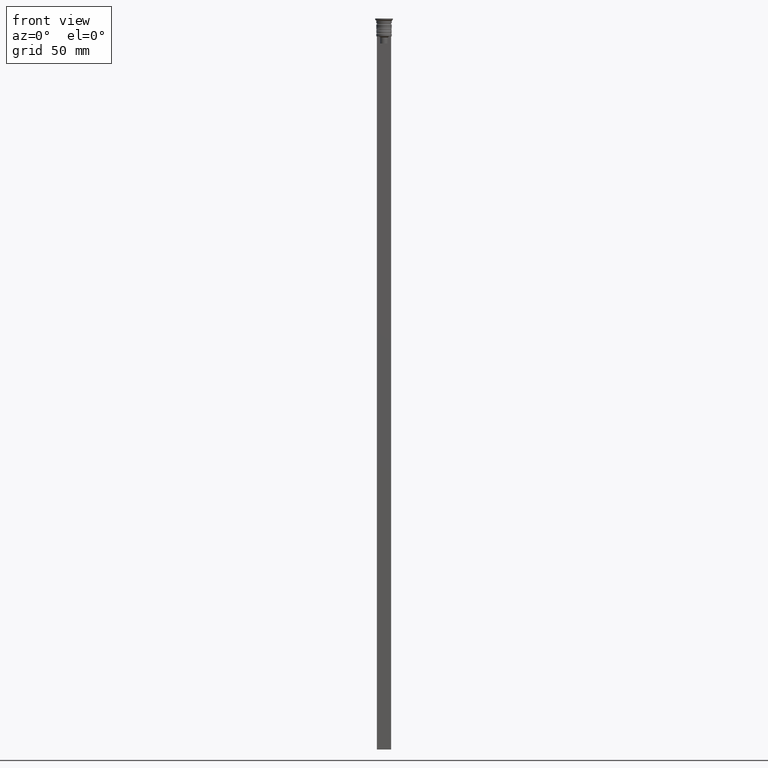
[diagram: clean part render]
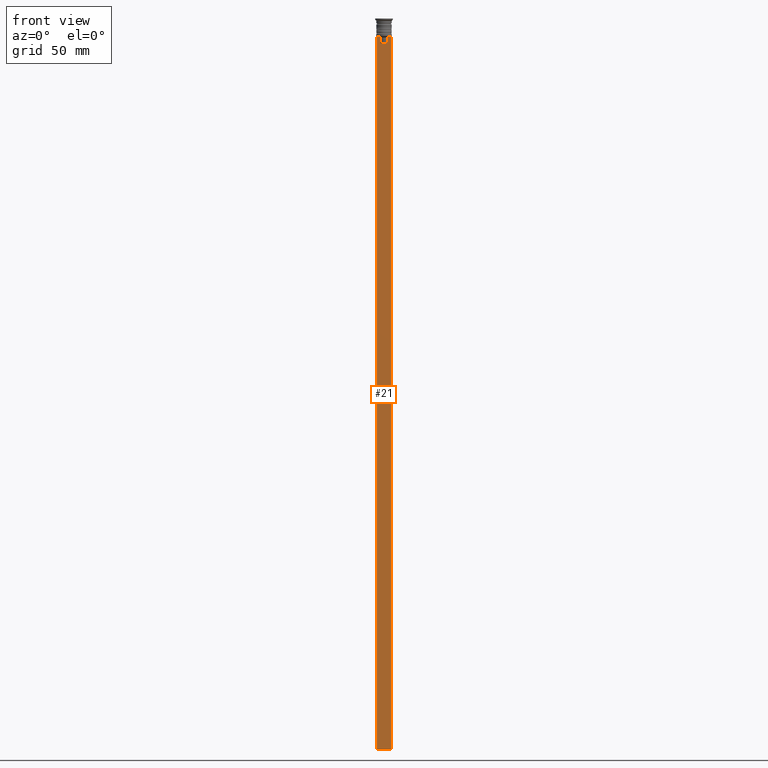
[diagram: same view with one face highlighted and labeled with its STEP entity id]
A machine part, front view. The second image highlights one B-rep face of the part: STEP entity #21.
In plain terms, the highlighted planar face has unit normal (0, -1, -0).
Its self-contained STEP definition (entity closure, byte-faithful):
#21 = ADVANCED_FACE ( 'NONE', ( #679 ), #1364, .T. ) ;
#41 = CARTESIAN_POINT ( 'NONE',  ( -1.612451549659713601, -0.3500000000000000333, 0.000000000000000000 ) ) ;
#66 = EDGE_CURVE ( 'NONE', #1867, #494, #701, .T. ) ;
#198 = CARTESIAN_POINT ( 'NONE',  ( -1.612451549659713601, -0.3500000000000000333, -10.49999999999999822 ) ) ;
#213 = VECTOR ( 'NONE', #1169, 1000.000000000000000 ) ;
#217 = VECTOR ( 'NONE', #1205, 1000.000000000000000 ) ;
#261 = LINE ( 'NONE', #952, #2148 ) ;
#296 = DIRECTION ( 'NONE',  ( 0.000000000000000000, 0.000000000000000000, -1.000000000000000000 ) ) ;
#332 = LINE ( 'NONE', #2027, #217 ) ;
#341 = CARTESIAN_POINT ( 'NONE',  ( 1.612451549659713601, -0.3500000000000000333, -8.000000000000000000 ) ) ;
#354 = ORIENTED_EDGE ( 'NONE', *, *, #577, .F. ) ;
#394 = ORIENTED_EDGE ( 'NONE', *, *, #2176, .F. ) ;
#406 = ORIENTED_EDGE ( 'NONE', *, *, #1679, .F. ) ;
#422 = CARTESIAN_POINT ( 'NONE',  ( 2.999999999999995559, -0.3500000000000000333, -307.5000000000000000 ) ) ;
#426 = LINE ( 'NONE', #1790, #1447 ) ;
#490 = EDGE_CURVE ( 'NONE', #1835, #1867, #1848, .T. ) ;
#494 = VERTEX_POINT ( 'NONE', #198 ) ;
#543 = DIRECTION ( 'NONE',  ( 0.000000000000000000, 0.000000000000000000, -1.000000000000000000 ) ) ;
#577 = EDGE_CURVE ( 'NONE', #1435, #1715, #426, .T. ) ;
#591 = DIRECTION ( 'NONE',  ( -1.000000000000000000, 0.000000000000000000, 0.000000000000000000 ) ) ;
#679 = FACE_OUTER_BOUND ( 'NONE', #922, .T. ) ;
#701 = LINE ( 'NONE', #41, #1299 ) ;
#708 = VECTOR ( 'NONE', #2181, 1000.000000000000000 ) ;
#756 = EDGE_CURVE ( 'NONE', #1914, #794, #848, .T. ) ;
#794 = VERTEX_POINT ( 'NONE', #1697 ) ;
#797 = LINE ( 'NONE', #1500, #213 ) ;
#837 = B_SPLINE_CURVE_WITH_KNOTS ( 'NONE', 3,
 ( #341, #1055, #1677, #1386 ),
 .UNSPECIFIED., .F., .F.,
 ( 4, 4 ),
 ( 0.008600796474521228696, 0.009317962624906526645 ),
 .UNSPECIFIED. ) ;
#848 = LINE ( 'NONE', #1180, #1896 ) ;
#880 = CARTESIAN_POINT ( 'NONE',  ( -2.121320343559647270, -0.3500000000000000333, -7.500000000000000000 ) ) ;
#922 = EDGE_LOOP ( 'NONE', ( #1521, #1584, #1178, #2136, #1713, #354, #406, #394, #2174, #931 ) ) ;
#931 = ORIENTED_EDGE ( 'NONE', *, *, #66, .F. ) ;
#952 = CARTESIAN_POINT ( 'NONE',  ( 2.999999999999995559, -0.3500000000000000333, -307.5000000000000000 ) ) ;
#985 = CARTESIAN_POINT ( 'NONE',  ( 1.612451549659713601, -0.3500000000000000333, -8.000000000000000000 ) ) ;
#991 = CARTESIAN_POINT ( 'NONE',  ( -3.000000000000004441, -0.3500000000000000333, -7.500000000000000000 ) ) ;
#1006 = VERTEX_POINT ( 'NONE', #422 ) ;
#1015 = LINE ( 'NONE', #1511, #708 ) ;
#1055 = CARTESIAN_POINT ( 'NONE',  ( 1.782523989086206795, -0.3500000000000000333, -7.833797837268088315 ) ) ;
#1062 = CARTESIAN_POINT ( 'NONE',  ( -1.952043732028444500, -0.3500000000000000333, -7.667018567316270961 ) ) ;
#1135 = VECTOR ( 'NONE', #296, 1000.000000000000000 ) ;
#1169 = DIRECTION ( 'NONE',  ( 1.000000000000000000, 0.000000000000000000, 0.000000000000000000 ) ) ;
#1171 = EDGE_CURVE ( 'NONE', #1914, #1835, #797, .T. ) ;
#1178 = ORIENTED_EDGE ( 'NONE', *, *, #756, .T. ) ;
#1180 = CARTESIAN_POINT ( 'NONE',  ( -3.000000000000004441, -0.3500000000000000333, -1.459304675784417915 ) ) ;
#1195 = EDGE_CURVE ( 'NONE', #1715, #1006, #1962, .T. ) ;
#1196 = DIRECTION ( 'NONE',  ( 0.000000000000000000, 0.000000000000000000, -1.000000000000000000 ) ) ;
#1205 = DIRECTION ( 'NONE',  ( 1.000000000000000000, 0.000000000000000000, 0.000000000000000000 ) ) ;
#1299 = VECTOR ( 'NONE', #543, 1000.000000000000000 ) ;
#1353 = CARTESIAN_POINT ( 'NONE',  ( 2.999999999999995559, -0.3500000000000000333, -7.500000000000000000 ) ) ;
#1361 = EDGE_CURVE ( 'NONE', #1006, #794, #261, .T. ) ;
#1364 = PLANE ( 'NONE',  #1960 ) ;
#1386 = CARTESIAN_POINT ( 'NONE',  ( 2.121320343559647270, -0.3500000000000000333, -7.500000000000000000 ) ) ;
#1435 = VERTEX_POINT ( 'NONE', #1735 ) ;
#1447 = VECTOR ( 'NONE', #1617, 1000.000000000000000 ) ;
#1500 = CARTESIAN_POINT ( 'NONE',  ( 2.999999999999995559, -0.3500000000000000333, -7.500000000000000000 ) ) ;
#1510 = DIRECTION ( 'NONE',  ( 0.000000000000000000, 0.000000000000000000, -1.000000000000000000 ) ) ;
#1511 = CARTESIAN_POINT ( 'NONE',  ( 1.612451549659713601, -0.3500000000000000333, 0.000000000000000000 ) ) ;
#1521 = ORIENTED_EDGE ( 'NONE', *, *, #490, .F. ) ;
#1563 = VERTEX_POINT ( 'NONE', #985 ) ;
#1584 = ORIENTED_EDGE ( 'NONE', *, *, #1171, .F. ) ;
#1598 = CARTESIAN_POINT ( 'NONE',  ( -1.612451549659713601, -0.3500000000000000333, -8.000000000000000000 ) ) ;
#1617 = DIRECTION ( 'NONE',  ( 1.000000000000000000, 0.000000000000000000, 0.000000000000000000 ) ) ;
#1627 = EDGE_CURVE ( 'NONE', #494, #1665, #332, .T. ) ;
#1665 = VERTEX_POINT ( 'NONE', #1701 ) ;
#1677 = CARTESIAN_POINT ( 'NONE',  ( 1.952040775369266346, -0.3500000000000000333, -7.667021484535463394 ) ) ;
#1679 = EDGE_CURVE ( 'NONE', #1563, #1435, #837, .T. ) ;
#1692 = DIRECTION ( 'NONE',  ( 0.000000000000000000, -1.000000000000000000, -0.000000000000000000 ) ) ;
#1697 = CARTESIAN_POINT ( 'NONE',  ( -3.000000000000004441, -0.3500000000000000333, -307.5000000000000000 ) ) ;
#1701 = CARTESIAN_POINT ( 'NONE',  ( 1.612451549659713601, -0.3500000000000000333, -10.49999999999999822 ) ) ;
#1713 = ORIENTED_EDGE ( 'NONE', *, *, #1195, .F. ) ;
#1715 = VERTEX_POINT ( 'NONE', #1353 ) ;
#1735 = CARTESIAN_POINT ( 'NONE',  ( 2.121320343559647270, -0.3500000000000000333, -7.500000000000000000 ) ) ;
#1774 = CARTESIAN_POINT ( 'NONE',  ( -1.782527878033862478, -0.3500000000000000333, -7.833794036819864637 ) ) ;
#1790 = CARTESIAN_POINT ( 'NONE',  ( 2.999999999999995559, -0.3500000000000000333, -7.500000000000000000 ) ) ;
#1801 = CARTESIAN_POINT ( 'NONE',  ( 2.999999999999995559, -0.3500000000000000333, -1.459304675784417915 ) ) ;
#1835 = VERTEX_POINT ( 'NONE', #1924 ) ;
#1848 = B_SPLINE_CURVE_WITH_KNOTS ( 'NONE', 3,
 ( #880, #1062, #1774, #1598 ),
 .UNSPECIFIED., .F., .F.,
 ( 4, 4 ),
 ( 0.003684653461239337929, 0.004398058763641257696 ),
 .UNSPECIFIED. ) ;
#1867 = VERTEX_POINT ( 'NONE', #2107 ) ;
#1896 = VECTOR ( 'NONE', #1510, 1000.000000000000000 ) ;
#1914 = VERTEX_POINT ( 'NONE', #991 ) ;
#1924 = CARTESIAN_POINT ( 'NONE',  ( -2.121320343559647270, -0.3500000000000000333, -7.500000000000000000 ) ) ;
#1960 = AXIS2_PLACEMENT_3D ( 'NONE', #2029, #1692, #1196 ) ;
#1962 = LINE ( 'NONE', #1801, #1135 ) ;
#2027 = CARTESIAN_POINT ( 'NONE',  ( 0.000000000000000000, -0.3500000000000000333, -10.49999999999999822 ) ) ;
#2029 = CARTESIAN_POINT ( 'NONE',  ( 2.999999999999995559, -0.3500000000000000333, -1.459304675784417915 ) ) ;
#2107 = CARTESIAN_POINT ( 'NONE',  ( -1.612451549659713601, -0.3500000000000000333, -8.000000000000000000 ) ) ;
#2136 = ORIENTED_EDGE ( 'NONE', *, *, #1361, .F. ) ;
#2148 = VECTOR ( 'NONE', #591, 1000.000000000000000 ) ;
#2174 = ORIENTED_EDGE ( 'NONE', *, *, #1627, .F. ) ;
#2176 = EDGE_CURVE ( 'NONE', #1665, #1563, #1015, .T. ) ;
#2181 = DIRECTION ( 'NONE',  ( -0.000000000000000000, -0.000000000000000000, 1.000000000000000000 ) ) ;